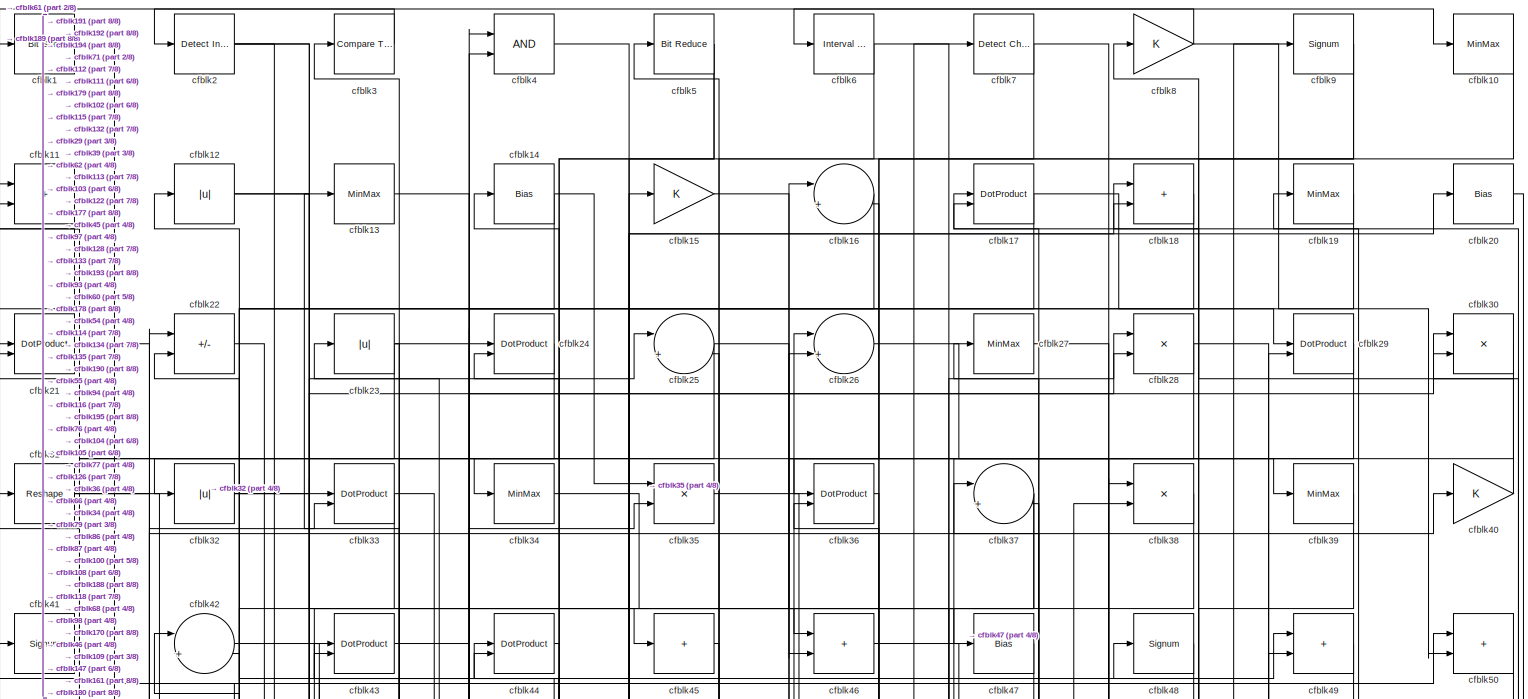
[diagram: root canvas - part 1/8, full width, top band]
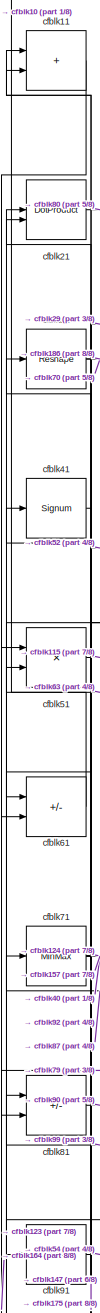
[diagram: root canvas - part 2/8, top left region]
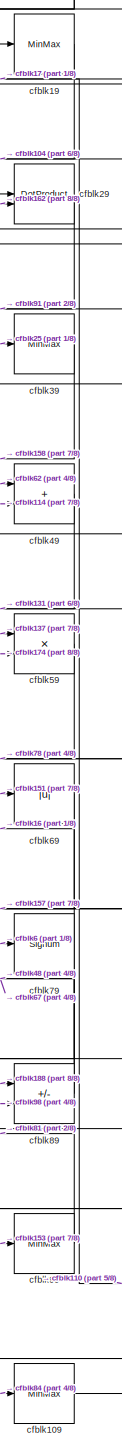
[diagram: root canvas - part 3/8, top right region]
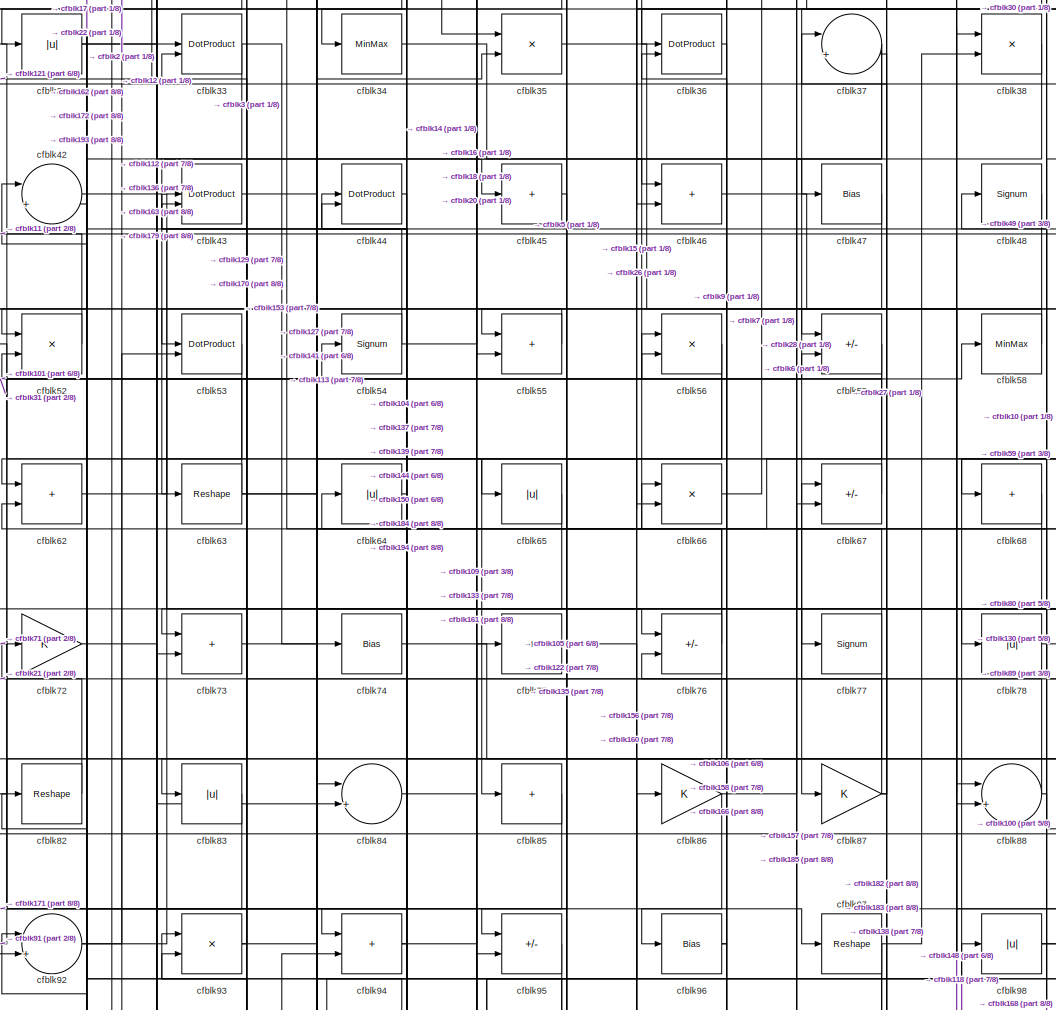
[diagram: root canvas - part 4/8, top center region]
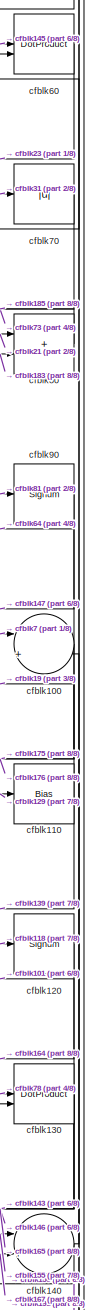
[diagram: root canvas - part 5/8, middle right region]
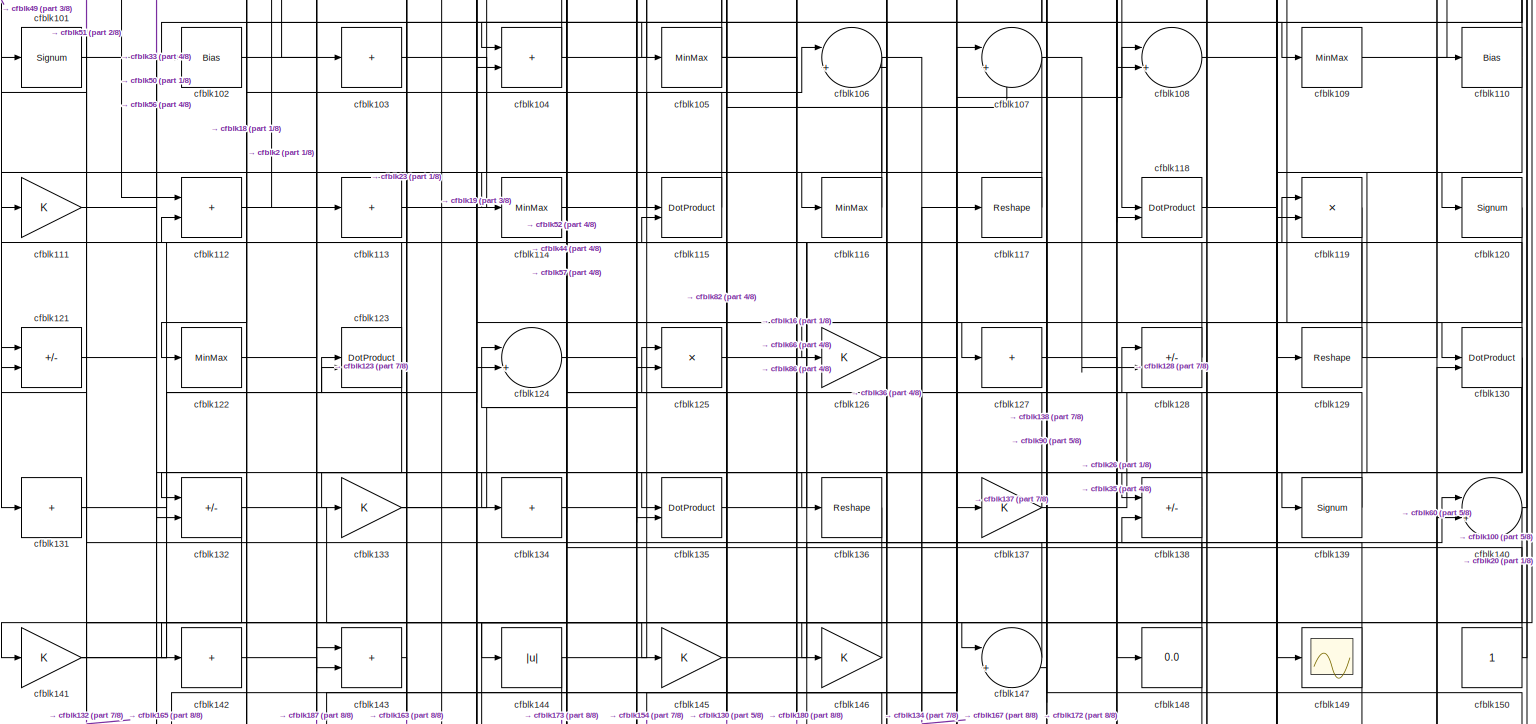
[diagram: root canvas - part 6/8, full width, middle band]
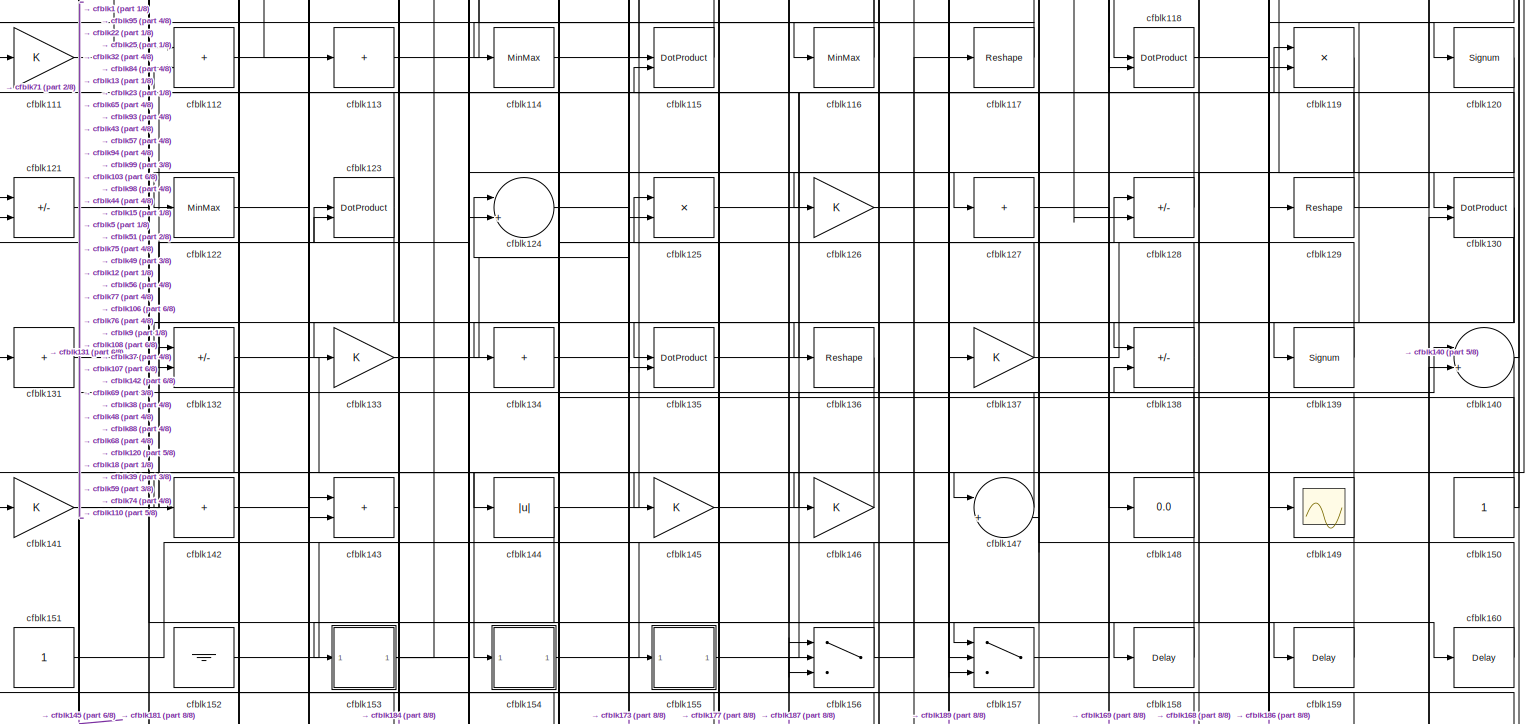
[diagram: root canvas - part 7/8, full width, bottom band]
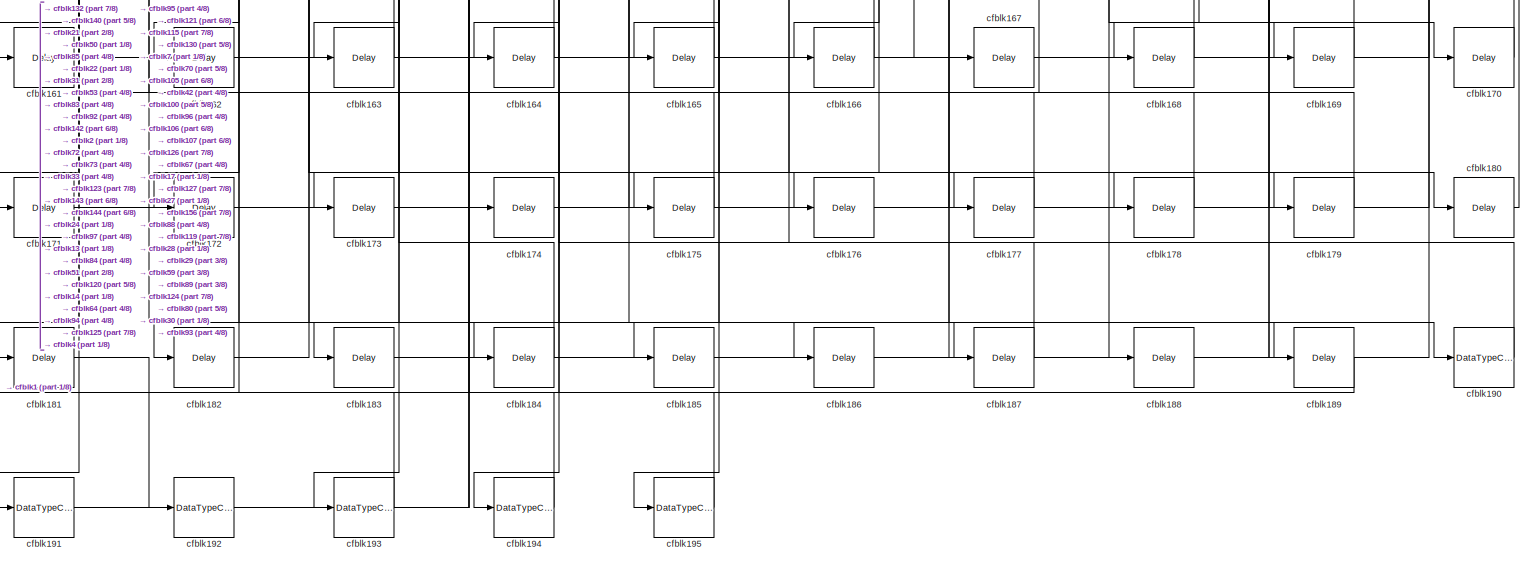
[diagram: root canvas - part 8/8, full width, bottom band]
MODEL slx_f9d0d2d48f3f
KIND model
CONFIG AbsTol = auto
CONFIG EnableMultiTasking = off
CONFIG FixedStep = auto
CONFIG MaxStep = auto
CONFIG MinStep = auto
CONFIG RelTol = 1e-3
CONFIG SampleTimeConstraint = Unconstrained
CONFIG SolverName = VariableStepAuto
CONFIG StartTime = 0.0
CONFIG StopTime = 10.0
BLOCK [Reference] cfblk1  REF=hdlsllib/Logic and Bit
Operations/Bit Shift
  SourceBlock = hdlsllib/Logic and Bit\nOperations/Bit Shift
  SourceType = Bit Shift
BLOCK [MinMax] cfblk10
BLOCK [Sum] cfblk100
  Inputs = |++
BLOCK [Signum] cfblk101
BLOCK [Bias] cfblk102
  Bias = 0.0
  SaturateOnIntegerOverflow = off
BLOCK [Sum] cfblk103
  IconShape = rectangular
  Inputs = +
BLOCK [Sum] cfblk104
  IconShape = rectangular
BLOCK [MinMax] cfblk105
BLOCK [Sum] cfblk106
  Inputs = |++
BLOCK [Sum] cfblk107
  Inputs = |++
BLOCK [Sum] cfblk108
  Inputs = |++
BLOCK [MinMax] cfblk109
BLOCK [Sum] cfblk11
  IconShape = rectangular
BLOCK [Bias] cfblk110
  Bias = 0.0
  SaturateOnIntegerOverflow = off
BLOCK [Gain] cfblk111
BLOCK [Sum] cfblk112
  IconShape = rectangular
BLOCK [Sum] cfblk113
  IconShape = rectangular
  Inputs = +
BLOCK [MinMax] cfblk114
BLOCK [DotProduct] cfblk115
  OutDataTypeStr = Inherit: Inherit via internal rule
BLOCK [MinMax] cfblk116
BLOCK [Reshape] cfblk117
BLOCK [DotProduct] cfblk118
  OutDataTypeStr = Inherit: Inherit via internal rule
BLOCK [Product] cfblk119
  Inputs = */
  RndMeth = Zero
  SaturateOnIntegerOverflow = on
BLOCK [Abs] cfblk12
  SaturateOnIntegerOverflow = off
BLOCK [Signum] cfblk120
BLOCK [Sum] cfblk121
  IconShape = rectangular
  Inputs = +-
BLOCK [MinMax] cfblk122
BLOCK [DotProduct] cfblk123
  OutDataTypeStr = Inherit: Inherit via internal rule
BLOCK [Sum] cfblk124
  Inputs = |++
BLOCK [Product] cfblk125
  Inputs = */
  RndMeth = Zero
  SaturateOnIntegerOverflow = on
BLOCK [Gain] cfblk126
BLOCK [Sum] cfblk127
  IconShape = rectangular
  Inputs = +
BLOCK [Sum] cfblk128
  IconShape = rectangular
  Inputs = +-
BLOCK [Reshape] cfblk129
BLOCK [MinMax] cfblk13
BLOCK [DotProduct] cfblk130
  OutDataTypeStr = Inherit: Inherit via internal rule
BLOCK [Sum] cfblk131
  IconShape = rectangular
  Inputs = +
BLOCK [Sum] cfblk132
  IconShape = rectangular
  Inputs = +-
BLOCK [Gain] cfblk133
BLOCK [Sum] cfblk134
  IconShape = rectangular
  Inputs = +
BLOCK [DotProduct] cfblk135
  OutDataTypeStr = Inherit: Inherit via internal rule
BLOCK [Reshape] cfblk136
BLOCK [Gain] cfblk137
BLOCK [Sum] cfblk138
  IconShape = rectangular
  Inputs = +-
BLOCK [Signum] cfblk139
BLOCK [Bias] cfblk14
  Bias = 0.0
  SaturateOnIntegerOverflow = off
BLOCK [Sum] cfblk140
  Inputs = |++
BLOCK [Gain] cfblk141
BLOCK [Sum] cfblk142
  IconShape = rectangular
  Inputs = +
BLOCK [Sum] cfblk143
  IconShape = rectangular
BLOCK [Abs] cfblk144
  SaturateOnIntegerOverflow = off
BLOCK [Gain] cfblk145
BLOCK [Gain] cfblk146
BLOCK [Sum] cfblk147
  Inputs = |++
BLOCK [Display] cfblk148
  Decimation = 1
BLOCK [Scope] cfblk149
  Floating = off
  NumInputPorts = 1
  ScopeSpecificationString = Simulink.scopes.TimeScopeBlockCfg('CurrentConfiguration', extmgr.ConfigurationSet(extmgr.Configuration('Core','General UI',true),extmgr.Configuration('Core','Source UI',true),extmgr.Configuration('Sources','WiredSimulink',true,'DataLoggingVariableName','ScopeData2','DataLoggingSaveFormat','Array','DataLoggingLimitDataPoints',true,'DataLoggingDecimation','1'),extmgr.Configuration('Visuals','Time Do...<+868ch>
BLOCK [Gain] cfblk15
BLOCK [Constant] cfblk150
  SampleTime = -1
BLOCK [Constant] cfblk151
  SampleTime = -1
BLOCK [Ground] cfblk152
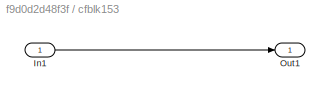
BLOCK [SubSystem] cfblk153
  LibrarySourceBlock = hdlsllib/Ports &\nSubsystems/Subsystem
BLOCK [Inport] cfblk153/In1
BLOCK [Outport] cfblk153/Out1
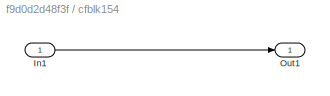
BLOCK [SubSystem] cfblk154
  LibrarySourceBlock = hdlsllib/Ports &\nSubsystems/Subsystem
BLOCK [Inport] cfblk154/In1
BLOCK [Outport] cfblk154/Out1
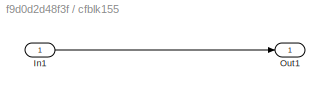
BLOCK [SubSystem] cfblk155
  LibrarySourceBlock = hdlsllib/Ports &\nSubsystems/Subsystem
BLOCK [Inport] cfblk155/In1
BLOCK [Outport] cfblk155/Out1
BLOCK [Switch] cfblk156
  InputSameDT = off
  SaturateOnIntegerOverflow = off
BLOCK [Switch] cfblk157
  InputSameDT = off
  SaturateOnIntegerOverflow = off
BLOCK [Delay] cfblk158
  InputPortMap = u0
  SampleTime = 1
BLOCK [Delay] cfblk159
  InputPortMap = u0
  SampleTime = 1
BLOCK [Sum] cfblk16
  Inputs = |++
BLOCK [Delay] cfblk160
  InputPortMap = u0
  SampleTime = 1
BLOCK [Delay] cfblk161
  InputPortMap = u0
  SampleTime = 1
BLOCK [Delay] cfblk162
  InputPortMap = u0
  SampleTime = 1
BLOCK [Delay] cfblk163
  InputPortMap = u0
  SampleTime = 1
BLOCK [Delay] cfblk164
  InputPortMap = u0
  SampleTime = 1
BLOCK [Delay] cfblk165
  InputPortMap = u0
  SampleTime = 1
BLOCK [Delay] cfblk166
  InputPortMap = u0
  SampleTime = 1
BLOCK [Delay] cfblk167
  InputPortMap = u0
  SampleTime = 1
BLOCK [Delay] cfblk168
  InputPortMap = u0
  SampleTime = 1
BLOCK [Delay] cfblk169
  InputPortMap = u0
  SampleTime = 1
BLOCK [DotProduct] cfblk17
  OutDataTypeStr = Inherit: Inherit via internal rule
BLOCK [Delay] cfblk170
  InputPortMap = u0
  SampleTime = 1
BLOCK [Delay] cfblk171
  InputPortMap = u0
  SampleTime = 1
BLOCK [Delay] cfblk172
  InputPortMap = u0
  SampleTime = 1
BLOCK [Delay] cfblk173
  InputPortMap = u0
  SampleTime = 1
BLOCK [Delay] cfblk174
  InputPortMap = u0
  SampleTime = 1
BLOCK [Delay] cfblk175
  InputPortMap = u0
  SampleTime = 1
BLOCK [Delay] cfblk176
  InputPortMap = u0
  SampleTime = 1
BLOCK [Delay] cfblk177
  InputPortMap = u0
  SampleTime = 1
BLOCK [Delay] cfblk178
  InputPortMap = u0
  SampleTime = 1
BLOCK [Delay] cfblk179
  InputPortMap = u0
  SampleTime = 1
BLOCK [Sum] cfblk18
  IconShape = rectangular
BLOCK [Delay] cfblk180
  InputPortMap = u0
  SampleTime = 1
BLOCK [Delay] cfblk181
  InputPortMap = u0
  SampleTime = 1
BLOCK [Delay] cfblk182
  InputPortMap = u0
  SampleTime = 1
BLOCK [Delay] cfblk183
  InputPortMap = u0
  SampleTime = 1
BLOCK [Delay] cfblk184
  InputPortMap = u0
  SampleTime = 1
BLOCK [Delay] cfblk185
  InputPortMap = u0
  SampleTime = 1
BLOCK [Delay] cfblk186
  InputPortMap = u0
  SampleTime = 1
BLOCK [Delay] cfblk187
  InputPortMap = u0
  SampleTime = 1
BLOCK [Delay] cfblk188
  InputPortMap = u0
  SampleTime = 1
BLOCK [Delay] cfblk189
  InputPortMap = u0
  SampleTime = 1
BLOCK [MinMax] cfblk19
BLOCK [DataTypeConversion] cfblk190
  OutDataTypeStr = uint8
  RndMeth = Floor
  SaturateOnIntegerOverflow = off
BLOCK [DataTypeConversion] cfblk191
  OutDataTypeStr = uint8
  RndMeth = Floor
  SaturateOnIntegerOverflow = off
BLOCK [DataTypeConversion] cfblk192
  OutDataTypeStr = uint8
  RndMeth = Floor
  SaturateOnIntegerOverflow = off
BLOCK [DataTypeConversion] cfblk193
  RndMeth = Floor
  SaturateOnIntegerOverflow = off
BLOCK [DataTypeConversion] cfblk194
  OutDataTypeStr = uint8
  RndMeth = Floor
  SaturateOnIntegerOverflow = off
BLOCK [DataTypeConversion] cfblk195
  OutDataTypeStr = uint8
  RndMeth = Floor
  SaturateOnIntegerOverflow = off
BLOCK [Reference] cfblk2  REF=simulink/Logic and Bit
Operations/Detect
Increase
  LibrarySourceBlock = hdlsllib/Logic and Bit\nOperations/Detect\nIncrease
  SourceBlock = simulink/Logic and Bit\nOperations/Detect\nIncrease
  SourceType = Detect Increase
BLOCK [Bias] cfblk20
  Bias = 0.0
  SaturateOnIntegerOverflow = off
BLOCK [DotProduct] cfblk21
  OutDataTypeStr = Inherit: Inherit via internal rule
BLOCK [Sum] cfblk22
  IconShape = rectangular
  Inputs = +-
BLOCK [Abs] cfblk23
  SaturateOnIntegerOverflow = off
BLOCK [DotProduct] cfblk24
  OutDataTypeStr = Inherit: Inherit via internal rule
BLOCK [Sum] cfblk25
  Inputs = |++
BLOCK [Sum] cfblk26
  Inputs = |++
BLOCK [MinMax] cfblk27
BLOCK [Product] cfblk28
  Inputs = */
  RndMeth = Zero
  SaturateOnIntegerOverflow = on
BLOCK [DotProduct] cfblk29
  OutDataTypeStr = Inherit: Inherit via internal rule
BLOCK [Reference] cfblk3  REF=hdlsllib/Logic and Bit
Operations/Compare
To Constant
  SourceBlock = hdlsllib/Logic and Bit\nOperations/Compare\nTo Constant
  SourceType = Compare To Constant
BLOCK [Product] cfblk30
  Inputs = */
  RndMeth = Zero
  SaturateOnIntegerOverflow = on
BLOCK [Reshape] cfblk31
BLOCK [Abs] cfblk32
  SaturateOnIntegerOverflow = off
BLOCK [DotProduct] cfblk33
  OutDataTypeStr = Inherit: Inherit via internal rule
BLOCK [MinMax] cfblk34
BLOCK [Product] cfblk35
  Inputs = */
  RndMeth = Zero
  SaturateOnIntegerOverflow = on
BLOCK [DotProduct] cfblk36
  OutDataTypeStr = Inherit: Inherit via internal rule
BLOCK [Sum] cfblk37
  Inputs = |++
BLOCK [Product] cfblk38
  Inputs = */
  RndMeth = Zero
  SaturateOnIntegerOverflow = on
BLOCK [MinMax] cfblk39
BLOCK [Logic] cfblk4
  AllPortsSameDT = off
  OutDataTypeStr = boolean
BLOCK [Gain] cfblk40
BLOCK [Signum] cfblk41
BLOCK [Sum] cfblk42
  Inputs = |++
BLOCK [DotProduct] cfblk43
  OutDataTypeStr = Inherit: Inherit via internal rule
BLOCK [DotProduct] cfblk44
  OutDataTypeStr = Inherit: Inherit via internal rule
BLOCK [Sum] cfblk45
  IconShape = rectangular
  Inputs = +
BLOCK [Sum] cfblk46
  IconShape = rectangular
BLOCK [Bias] cfblk47
  Bias = 0.0
  SaturateOnIntegerOverflow = off
BLOCK [Signum] cfblk48
BLOCK [Sum] cfblk49
  IconShape = rectangular
BLOCK [Reference] cfblk5  REF=hdlsllib/Logic and Bit
Operations/Bit Reduce
  SourceBlock = hdlsllib/Logic and Bit\nOperations/Bit Reduce
  SourceType = Bit Reduce
BLOCK [Sum] cfblk50
  IconShape = rectangular
BLOCK [Product] cfblk51
  Inputs = */
  RndMeth = Zero
  SaturateOnIntegerOverflow = on
BLOCK [Product] cfblk52
  Inputs = */
  RndMeth = Zero
  SaturateOnIntegerOverflow = on
BLOCK [DotProduct] cfblk53
  OutDataTypeStr = Inherit: Inherit via internal rule
BLOCK [Signum] cfblk54
BLOCK [Sum] cfblk55
  IconShape = rectangular
BLOCK [Product] cfblk56
  Inputs = */
  RndMeth = Zero
  SaturateOnIntegerOverflow = on
BLOCK [Sum] cfblk57
  IconShape = rectangular
  Inputs = +-
BLOCK [MinMax] cfblk58
BLOCK [Product] cfblk59
  Inputs = */
  RndMeth = Zero
  SaturateOnIntegerOverflow = on
BLOCK [Reference] cfblk6  REF=hdlsllib/Logic and Bit
Operations/Interval Test
  SourceBlock = hdlsllib/Logic and Bit\nOperations/Interval Test
  SourceType = Interval Test
BLOCK [DotProduct] cfblk60
  OutDataTypeStr = Inherit: Inherit via internal rule
BLOCK [Sum] cfblk61
  IconShape = rectangular
  Inputs = +-
BLOCK [Sum] cfblk62
  IconShape = rectangular
BLOCK [Reshape] cfblk63
BLOCK [Abs] cfblk64
  SaturateOnIntegerOverflow = off
BLOCK [Abs] cfblk65
  SaturateOnIntegerOverflow = off
BLOCK [Product] cfblk66
  Inputs = */
  RndMeth = Zero
  SaturateOnIntegerOverflow = on
BLOCK [Sum] cfblk67
  IconShape = rectangular
  Inputs = +-
BLOCK [Sum] cfblk68
  IconShape = rectangular
  Inputs = +
BLOCK [Abs] cfblk69
  SaturateOnIntegerOverflow = off
BLOCK [Reference] cfblk7  REF=simulink/Logic and Bit
Operations/Detect
Change
  LibrarySourceBlock = hdlsllib/Logic and Bit\nOperations/Detect\nChange
  SourceBlock = simulink/Logic and Bit\nOperations/Detect\nChange
  SourceType = Detect Change
BLOCK [Abs] cfblk70
  SaturateOnIntegerOverflow = off
BLOCK [MinMax] cfblk71
BLOCK [Gain] cfblk72
BLOCK [Sum] cfblk73
  IconShape = rectangular
BLOCK [Bias] cfblk74
  Bias = 0.0
  SaturateOnIntegerOverflow = off
BLOCK [Sum] cfblk75
  IconShape = rectangular
  Inputs = +
BLOCK [Sum] cfblk76
  IconShape = rectangular
  Inputs = +-
BLOCK [Signum] cfblk77
BLOCK [Abs] cfblk78
  SaturateOnIntegerOverflow = off
BLOCK [Signum] cfblk79
BLOCK [Gain] cfblk8
BLOCK [Sum] cfblk80
  IconShape = rectangular
BLOCK [Sum] cfblk81
  IconShape = rectangular
  Inputs = +-
BLOCK [Reshape] cfblk82
BLOCK [Abs] cfblk83
  SaturateOnIntegerOverflow = off
BLOCK [Sum] cfblk84
  Inputs = |++
BLOCK [Sum] cfblk85
  IconShape = rectangular
  Inputs = +
BLOCK [Gain] cfblk86
BLOCK [Gain] cfblk87
BLOCK [Sum] cfblk88
  Inputs = |++
BLOCK [Sum] cfblk89
  IconShape = rectangular
  Inputs = +-
BLOCK [Signum] cfblk9
BLOCK [Signum] cfblk90
BLOCK [Bias] cfblk91
  Bias = 0.0
  SaturateOnIntegerOverflow = off
BLOCK [Sum] cfblk92
  Inputs = |++
BLOCK [Product] cfblk93
  Inputs = */
  RndMeth = Zero
  SaturateOnIntegerOverflow = on
BLOCK [Sum] cfblk94
  IconShape = rectangular
BLOCK [Sum] cfblk95
  IconShape = rectangular
  Inputs = +-
BLOCK [Bias] cfblk96
  Bias = 0.0
  SaturateOnIntegerOverflow = off
BLOCK [Reshape] cfblk97
BLOCK [Abs] cfblk98
  SaturateOnIntegerOverflow = off
BLOCK [MinMax] cfblk99
NET cfblk100:1 -> cfblk175:1, cfblk176:1, cfblk64:1
LINE cfblk101:1 -> cfblk56:1
LINE cfblk102:1 -> cfblk143:1
LINE cfblk103:1 -> cfblk137:1
NET cfblk104:1 -> cfblk26:2, cfblk52:2
NET cfblk105:1 -> cfblk107:2, cfblk16:1, cfblk180:1, cfblk82:1
NET cfblk106:1 -> cfblk134:1, cfblk167:1
NET cfblk107:1 -> cfblk121:1, cfblk128:2
LINE cfblk108:1 -> cfblk149:1
LINE cfblk109:1 -> cfblk17:1
LINE cfblk10:1 -> cfblk68:1
NET cfblk110:1 -> cfblk139:1, cfblk19:1
LINE cfblk111:1 -> cfblk50:1
LINE cfblk112:1 -> cfblk84:2
LINE cfblk113:1 -> cfblk98:1
LINE cfblk114:1 -> cfblk49:2
LINE cfblk115:1 -> cfblk12:1
LINE cfblk116:1 -> cfblk25:2
LINE cfblk117:1 -> cfblk116:1
NET cfblk118:1 -> cfblk120:1, cfblk18:1
LINE cfblk119:1 -> cfblk138:1
LINE cfblk11:1 -> cfblk61:2
LINE cfblk120:1 -> cfblk164:1
LINE cfblk121:1 -> cfblk33:2
LINE cfblk122:1 -> cfblk25:1
NET cfblk123:1 -> cfblk132:2, cfblk71:1
LINE cfblk124:1 -> cfblk155:1
LINE cfblk125:1 -> cfblk119:1
LINE cfblk126:1 -> cfblk189:1
LINE cfblk127:1 -> cfblk169:1
LINE cfblk128:1 -> cfblk13:1
NET cfblk129:1 -> cfblk110:1, cfblk93:1
NET cfblk12:1 -> cfblk45:1, cfblk97:1
NET cfblk130:1 -> cfblk101:1, cfblk143:2, cfblk146:1, cfblk165:1
LINE cfblk131:1 -> cfblk123:1
NET cfblk132:1 -> cfblk145:1, cfblk181:1
NET cfblk133:1 -> cfblk159:1, cfblk75:1
LINE cfblk134:1 -> cfblk15:1
LINE cfblk135:1 -> cfblk38:1
LINE cfblk136:1 -> cfblk154:1
NET cfblk137:1 -> cfblk43:1, cfblk59:1
NET cfblk138:1 -> cfblk142:1, cfblk37:1
LINE cfblk139:1 -> cfblk44:2
LINE cfblk13:1 -> cfblk178:1
NET cfblk140:1 -> cfblk191:1, cfblk60:2
NET cfblk141:1 -> cfblk66:1, cfblk86:1
LINE cfblk142:1 -> cfblk187:1
LINE cfblk143:1 -> cfblk163:1
NET cfblk144:1 -> cfblk106:1, cfblk173:1
LINE cfblk145:1 -> cfblk60:1
LINE cfblk146:1 -> cfblk141:1
LINE cfblk147:1 -> cfblk51:2
NET cfblk14:1 -> cfblk32:1, cfblk35:1
NET cfblk150:1 -> cfblk100:2, cfblk44:1
LINE cfblk151:1 -> cfblk69:1
LINE cfblk152:1 -> cfblk128:1
LINE cfblk153/In1:1 -> cfblk153/Out1:1
NET cfblk153:1 -> cfblk57:2, cfblk94:2, cfblk99:1
LINE cfblk154/In1:1 -> cfblk154/Out1:1
LINE cfblk154:1 -> cfblk108:1
LINE cfblk155/In1:1 -> cfblk155/Out1:1
LINE cfblk155:1 -> cfblk140:1
NET cfblk156:1 -> cfblk117:1, cfblk125:1
LINE cfblk157:1 -> cfblk88:2
LINE cfblk158:1 -> cfblk76:2
LINE cfblk159:1 -> cfblk138:2
LINE cfblk15:1 -> cfblk47:1
LINE cfblk160:1 -> cfblk112:2
LINE cfblk161:1 -> cfblk95:2
LINE cfblk162:1 -> cfblk29:2
LINE cfblk163:1 -> cfblk33:1
LINE cfblk164:1 -> cfblk51:1
LINE cfblk165:1 -> cfblk121:2
LINE cfblk166:1 -> cfblk42:1
LINE cfblk167:1 -> cfblk140:2
LINE cfblk168:1 -> cfblk156:1
LINE cfblk169:1 -> cfblk124:1
LINE cfblk16:1 -> cfblk55:2
LINE cfblk170:1 -> cfblk93:2
LINE cfblk171:1 -> cfblk84:1
LINE cfblk172:1 -> cfblk107:1
LINE cfblk173:1 -> cfblk125:2
LINE cfblk174:1 -> cfblk59:2
LINE cfblk175:1 -> cfblk21:2
LINE cfblk176:1 -> cfblk130:2
LINE cfblk177:1 -> cfblk115:2
LINE cfblk178:1 -> cfblk17:2
LINE cfblk179:1 -> cfblk22:1
NET cfblk17:1 -> cfblk29:1, cfblk62:1
LINE cfblk180:1 -> cfblk30:2
LINE cfblk181:1 -> cfblk192:1
LINE cfblk182:1 -> cfblk73:2
LINE cfblk183:1 -> cfblk80:2
LINE cfblk184:1 -> cfblk123:2
LINE cfblk185:1 -> cfblk67:2
LINE cfblk186:1 -> cfblk119:2
LINE cfblk187:1 -> cfblk156:2
LINE cfblk188:1 -> cfblk89:1
LINE cfblk189:1 -> cfblk1:1
LINE cfblk18:1 -> cfblk102:1
LINE cfblk190:1 -> cfblk14:1
LINE cfblk191:1 -> cfblk4:1
LINE cfblk192:1 -> cfblk4:2
NET cfblk193:1 -> cfblk174:1, cfblk92:1
LINE cfblk194:1 -> cfblk24:1
LINE cfblk195:1 -> cfblk24:2
LINE cfblk19:1 -> cfblk104:2
LINE cfblk1:1 -> cfblk112:1
LINE cfblk20:1 -> cfblk147:1
LINE cfblk21:1 -> cfblk80:1
LINE cfblk22:1 -> cfblk113:1
NET cfblk23:1 -> cfblk105:1, cfblk111:1, cfblk133:1
LINE cfblk24:1 -> cfblk193:1
NET cfblk25:1 -> cfblk132:1, cfblk39:1
LINE cfblk26:1 -> cfblk108:2
LINE cfblk27:1 -> cfblk188:1
NET cfblk28:1 -> cfblk170:1, cfblk46:2
LINE cfblk29:1 -> cfblk91:1
NET cfblk2:1 -> cfblk103:1, cfblk177:1, cfblk66:2
LINE cfblk30:1 -> cfblk87:1
NET cfblk31:1 -> cfblk186:1, cfblk70:1
NET cfblk32:1 -> cfblk136:1, cfblk30:1
NET cfblk33:1 -> cfblk52:1, cfblk74:1
LINE cfblk34:1 -> cfblk46:1
LINE cfblk35:1 -> cfblk148:1
LINE cfblk36:1 -> cfblk106:2
NET cfblk37:1 -> cfblk157:2, cfblk63:1
LINE cfblk38:1 -> cfblk83:1
LINE cfblk39:1 -> cfblk158:1
LINE cfblk3:1 -> cfblk2:1
LINE cfblk40:1 -> cfblk8:1
LINE cfblk41:1 -> cfblk61:1
LINE cfblk42:1 -> cfblk76:1
LINE cfblk43:1 -> cfblk127:1
LINE cfblk44:1 -> cfblk104:1
LINE cfblk45:1 -> cfblk95:1
LINE cfblk46:1 -> cfblk88:1
LINE cfblk47:1 -> cfblk55:1
LINE cfblk48:1 -> cfblk118:2
LINE cfblk49:1 -> cfblk131:1
LINE cfblk4:1 -> cfblk190:1
LINE cfblk50:1 -> cfblk161:1
LINE cfblk51:1 -> cfblk115:1
LINE cfblk52:1 -> cfblk11:1
LINE cfblk53:1 -> cfblk162:1
NET cfblk54:1 -> cfblk20:1, cfblk22:2
LINE cfblk55:1 -> cfblk53:1
NET cfblk56:1 -> cfblk135:1, cfblk85:1
NET cfblk57:1 -> cfblk144:1, cfblk56:2
LINE cfblk58:1 -> cfblk57:1
LINE cfblk59:1 -> cfblk78:1
NET cfblk5:1 -> cfblk114:1, cfblk135:2
LINE cfblk60:1 -> cfblk23:1
LINE cfblk61:1 -> cfblk10:1
LINE cfblk62:1 -> cfblk49:1
NET cfblk63:1 -> cfblk31:1, cfblk35:2, cfblk65:1
LINE cfblk64:1 -> cfblk194:1
LINE cfblk65:1 -> cfblk153:1
LINE cfblk66:1 -> cfblk7:1
LINE cfblk67:1 -> cfblk42:2
LINE cfblk68:1 -> cfblk118:1
LINE cfblk69:1 -> cfblk157:1
NET cfblk6:1 -> cfblk34:1, cfblk79:1
LINE cfblk70:1 -> cfblk185:1
NET cfblk71:1 -> cfblk124:2, cfblk157:3, cfblk40:1, cfblk41:1, cfblk92:2
LINE cfblk72:1 -> cfblk179:1
LINE cfblk73:1 -> cfblk77:1
LINE cfblk74:1 -> cfblk129:1
LINE cfblk75:1 -> cfblk160:1
NET cfblk76:1 -> cfblk5:1, cfblk62:2, cfblk94:1
NET cfblk77:1 -> cfblk156:3, cfblk26:1
LINE cfblk78:1 -> cfblk130:1
NET cfblk79:1 -> cfblk16:2, cfblk81:2
NET cfblk7:1 -> cfblk100:1, cfblk195:1
LINE cfblk80:1 -> cfblk73:1
LINE cfblk81:1 -> cfblk90:1
LINE cfblk82:1 -> cfblk72:1
LINE cfblk83:1 -> cfblk172:1
LINE cfblk84:1 -> cfblk109:1
LINE cfblk85:1 -> cfblk171:1
NET cfblk86:1 -> cfblk28:2, cfblk96:1
NET cfblk87:1 -> cfblk21:1, cfblk27:1, cfblk37:2
NET cfblk88:1 -> cfblk168:1, cfblk43:2
NET cfblk89:1 -> cfblk48:1, cfblk67:1
NET cfblk8:1 -> cfblk50:2, cfblk6:1
LINE cfblk90:1 -> cfblk147:2
NET cfblk91:1 -> cfblk11:2, cfblk54:1
NET cfblk92:1 -> cfblk53:2, cfblk58:1
NET cfblk93:1 -> cfblk28:1, cfblk3:1
NET cfblk94:1 -> cfblk184:1, cfblk18:2
LINE cfblk95:1 -> cfblk122:1
NET cfblk96:1 -> cfblk166:1, cfblk36:2
NET cfblk97:1 -> cfblk182:1, cfblk183:1, cfblk38:2
NET cfblk98:1 -> cfblk89:2, cfblk9:1
LINE cfblk99:1 -> cfblk81:1
NET cfblk9:1 -> cfblk126:1, cfblk36:1
note: NET lines group one-source signal fan-out (src -> all destinations, sorted); 1:1 wires keep LINE
